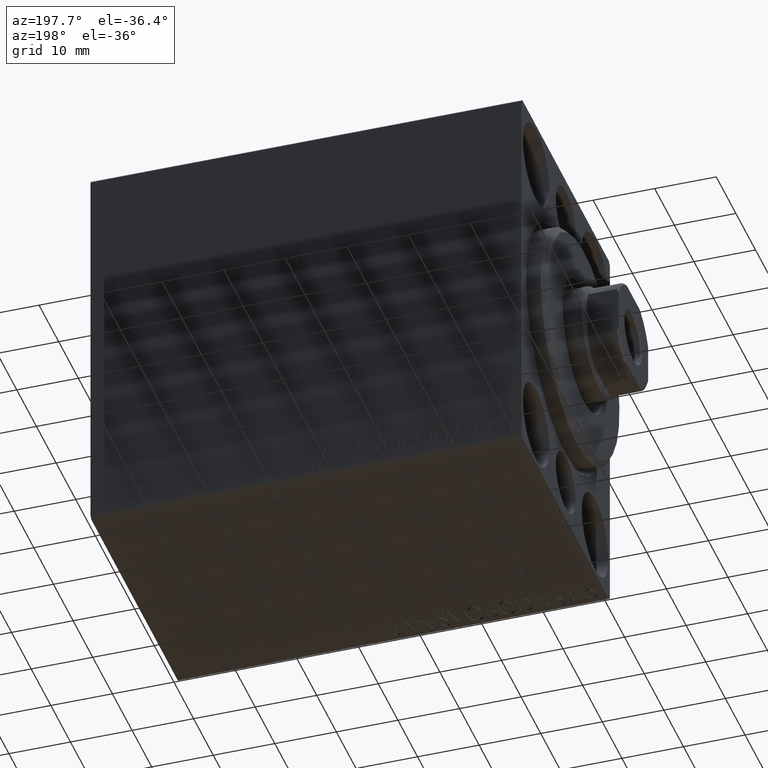
[diagram: clean part render]
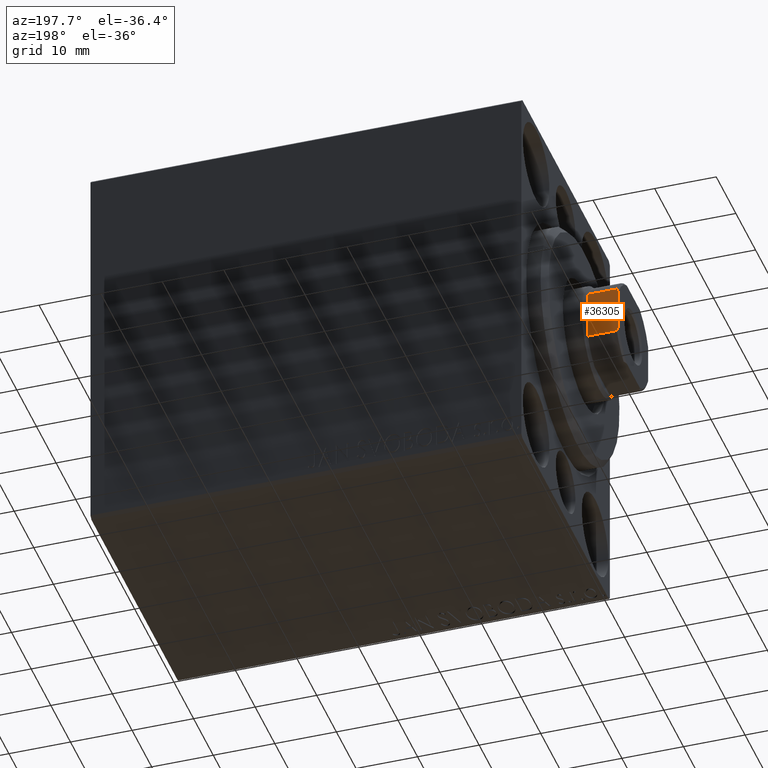
[diagram: same view with one face highlighted and labeled with its STEP entity id]
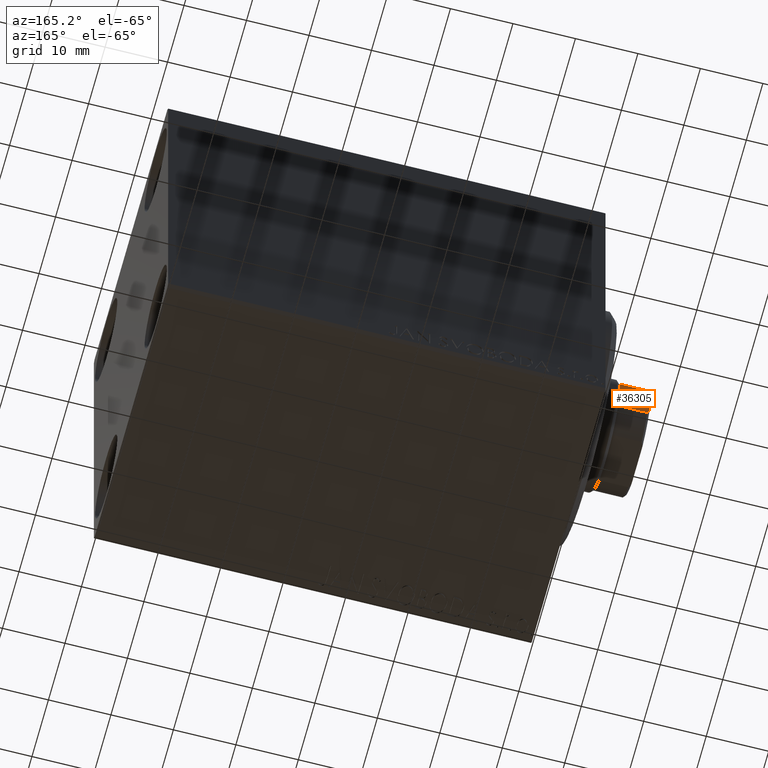
[diagram: same view with one face highlighted and labeled with its STEP entity id]
A machine part, auxiliary view. The second image highlights one B-rep face of the part: STEP entity #36305.
A second angle (auxiliary view) of the same face is appended — the face is thin or edge-on in the first view.
In plain terms, the highlighted planar face has unit normal (-0, -1, -0).
Its self-contained STEP definition (entity closure, byte-faithful):
#1309 = CARTESIAN_POINT ( 'NONE',  ( 4.000000000000000000, 7.500000000000000888, 74.70000000000001705 ) ) ;
#1399 = VECTOR ( 'NONE', #8588, 1000.000000000000000 ) ;
#2212 = VECTOR ( 'NONE', #33667, 1000.000000000000000 ) ;
#2603 = CARTESIAN_POINT ( 'NONE',  ( 4.000000000000000000, 7.500000000000000888, 74.70000000000001705 ) ) ;
#3310 = VECTOR ( 'NONE', #12379, 1000.000000000000000 ) ;
#3823 = LINE ( 'NONE', #7153, #2212 ) ;
#3878 = EDGE_CURVE ( 'NONE', #6539, #33534, #3823, .T. ) ;
#4401 = B_SPLINE_CURVE_WITH_KNOTS ( 'NONE', 3,
 ( #31821, #14603, #4434, #1309 ),
 .UNSPECIFIED., .F., .F.,
 ( 4, 4 ),
 ( 0.000000000000000000, 0.0007477064084242627260 ),
 .UNSPECIFIED. ) ;
#4434 = CARTESIAN_POINT ( 'NONE',  ( 3.774404943294785486, 7.500000000000000888, 74.80616237962604487 ) ) ;
#4624 = EDGE_CURVE ( 'NONE', #33534, #10438, #32925, .T. ) ;
#4931 = ORIENTED_EDGE ( 'NONE', *, *, #26220, .T. ) ;
#5077 = DIRECTION ( 'NONE',  ( 1.000000000000000000, -5.782411586589357392E-17, 0.000000000000000000 ) ) ;
#5227 = EDGE_LOOP ( 'NONE', ( #41498, #4931, #41887, #8407, #24595, #20496 ) ) ;
#5485 = LINE ( 'NONE', #22268, #1399 ) ;
#6539 = VERTEX_POINT ( 'NONE', #12252 ) ;
#6620 = LINE ( 'NONE', #13466, #25005 ) ;
#6953 = CARTESIAN_POINT ( 'NONE',  ( 4.000000000000000000, 7.500000000000000888, 70.00000000000001421 ) ) ;
#7153 = CARTESIAN_POINT ( 'NONE',  ( -4.000000000000000000, 7.500000000000000888, -0.001000000000001000089 ) ) ;
#7414 = VERTEX_POINT ( 'NONE', #25508 ) ;
#8407 = ORIENTED_EDGE ( 'NONE', *, *, #10796, .T. ) ;
#8588 = DIRECTION ( 'NONE',  ( -0.000000000000000000, -0.000000000000000000, 1.000000000000000000 ) ) ;
#9819 = CARTESIAN_POINT ( 'NONE',  ( -4.000000000000000000, 7.500000000000000888, 74.70000000000001705 ) ) ;
#10438 = VERTEX_POINT ( 'NONE', #27222 ) ;
#10796 = EDGE_CURVE ( 'NONE', #17238, #6539, #6620, .T. ) ;
#12252 = CARTESIAN_POINT ( 'NONE',  ( -3.999999999999997335, 7.500000000000000888, 70.00000000000001421 ) ) ;
#12379 = DIRECTION ( 'NONE',  ( -1.000000000000000000, 5.782411586589357392E-17, -0.000000000000000000 ) ) ;
#12916 = CARTESIAN_POINT ( 'NONE',  ( -3.315116890850159148, 7.500000000000000888, 75.00000000000001421 ) ) ;
#13466 = CARTESIAN_POINT ( 'NONE',  ( -7.500000000000001776, 7.500000000000001776, 70.00000000000000000 ) ) ;
#14603 = CARTESIAN_POINT ( 'NONE',  ( 3.546278369582375412, 7.500000000000000888, 74.90654544845624230 ) ) ;
#15688 = LINE ( 'NONE', #22526, #3310 ) ;
#16211 = AXIS2_PLACEMENT_3D ( 'NONE', #25397, #22077, #5077 ) ;
#17238 = VERTEX_POINT ( 'NONE', #6953 ) ;
#17697 = EDGE_CURVE ( 'NONE', #7414, #10438, #15688, .T. ) ;
#18978 = FACE_OUTER_BOUND ( 'NONE', #5227, .T. ) ;
#20269 = CARTESIAN_POINT ( 'NONE',  ( -4.000000000000000000, 7.500000000000000888, 74.70000000000001705 ) ) ;
#20496 = ORIENTED_EDGE ( 'NONE', *, *, #4624, .T. ) ;
#22077 = DIRECTION ( 'NONE',  ( -5.782411586589357392E-17, -1.000000000000000000, 0.000000000000000000 ) ) ;
#22268 = CARTESIAN_POINT ( 'NONE',  ( 4.000000000000000000, 7.500000000000000888, -0.001000000000001000089 ) ) ;
#22526 = CARTESIAN_POINT ( 'NONE',  ( -7.500000000000001776, 7.500000000000001776, 75.00000000000001421 ) ) ;
#24595 = ORIENTED_EDGE ( 'NONE', *, *, #3878, .T. ) ;
#25005 = VECTOR ( 'NONE', #39774, 1000.000000000000000 ) ;
#25397 = CARTESIAN_POINT ( 'NONE',  ( -7.500000000000001776, 7.500000000000001776, 75.00000000000001421 ) ) ;
#25508 = CARTESIAN_POINT ( 'NONE',  ( 3.315116890850187126, 7.500000000000000888, 75.00000000000001421 ) ) ;
#26220 = EDGE_CURVE ( 'NONE', #7414, #38753, #4401, .T. ) ;
#27222 = CARTESIAN_POINT ( 'NONE',  ( -3.315116890850159148, 7.500000000000000888, 75.00000000000001421 ) ) ;
#31821 = CARTESIAN_POINT ( 'NONE',  ( 3.315116890850187126, 7.500000000000000888, 75.00000000000001421 ) ) ;
#32925 = B_SPLINE_CURVE_WITH_KNOTS ( 'NONE', 3,
 ( #9819, #43195, #33017, #12916 ),
 .UNSPECIFIED., .F., .F.,
 ( 4, 4 ),
 ( 0.000000000000000000, 0.0007477064084242890721 ),
 .UNSPECIFIED. ) ;
#33017 = CARTESIAN_POINT ( 'NONE',  ( -3.546278369582399392, 7.500000000000001776, 74.90654544845632756 ) ) ;
#33412 = EDGE_CURVE ( 'NONE', #17238, #38753, #5485, .T. ) ;
#33534 = VERTEX_POINT ( 'NONE', #20269 ) ;
#33667 = DIRECTION ( 'NONE',  ( -0.000000000000000000, -0.000000000000000000, 1.000000000000000000 ) ) ;
#36305 = ADVANCED_FACE ( 'NONE', ( #18978 ), #41782, .F. ) ;
#38753 = VERTEX_POINT ( 'NONE', #2603 ) ;
#39774 = DIRECTION ( 'NONE',  ( -1.000000000000000000, 5.782411586589357392E-17, -0.000000000000000000 ) ) ;
#41498 = ORIENTED_EDGE ( 'NONE', *, *, #17697, .F. ) ;
#41782 = PLANE ( 'NONE',  #16211 ) ;
#41887 = ORIENTED_EDGE ( 'NONE', *, *, #33412, .F. ) ;
#43195 = CARTESIAN_POINT ( 'NONE',  ( -3.774404943294761061, 7.500000000000000888, 74.80616237962600223 ) ) ;